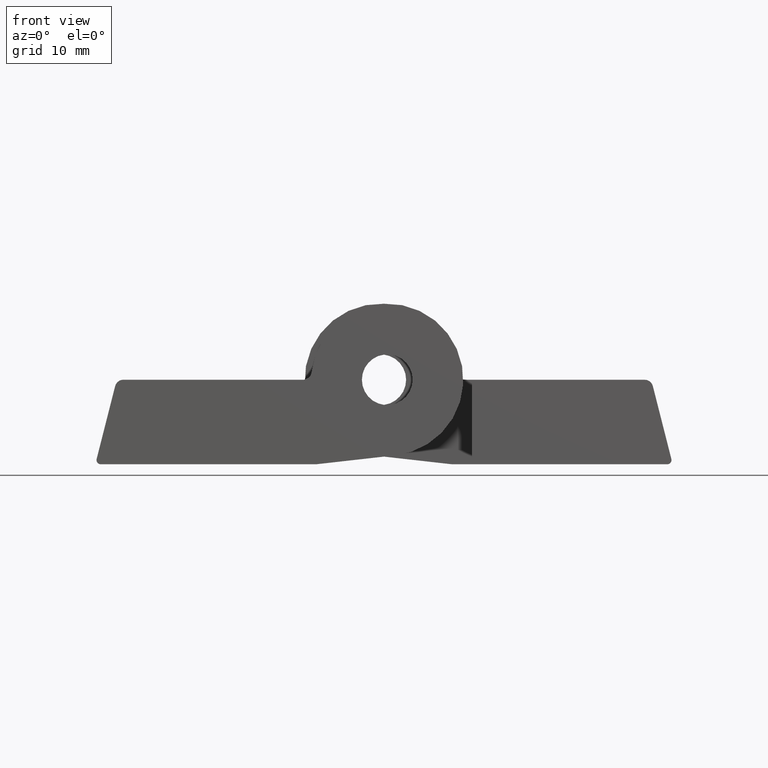
[diagram: clean part render]
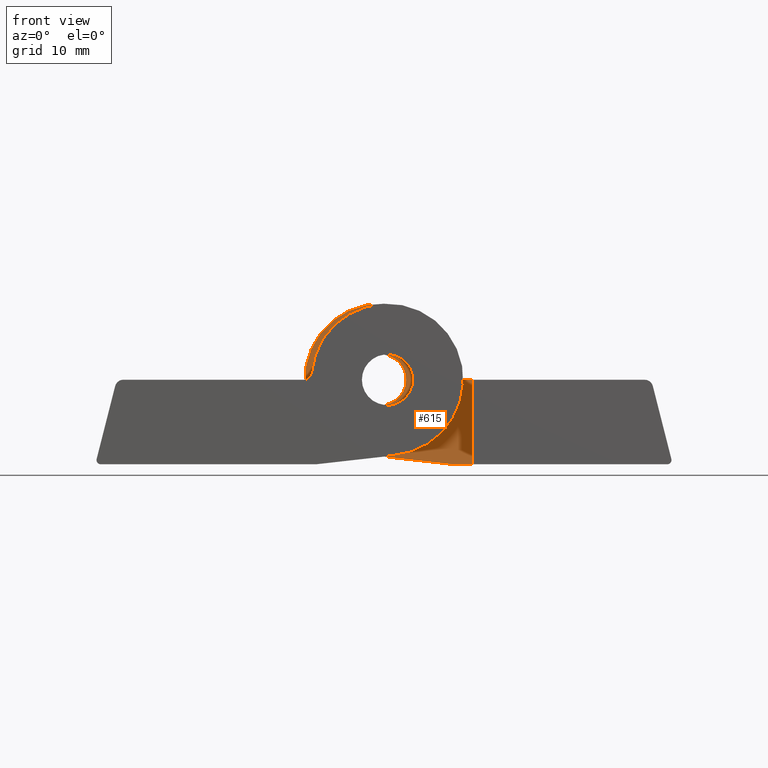
[diagram: same view with one face highlighted and labeled with its STEP entity id]
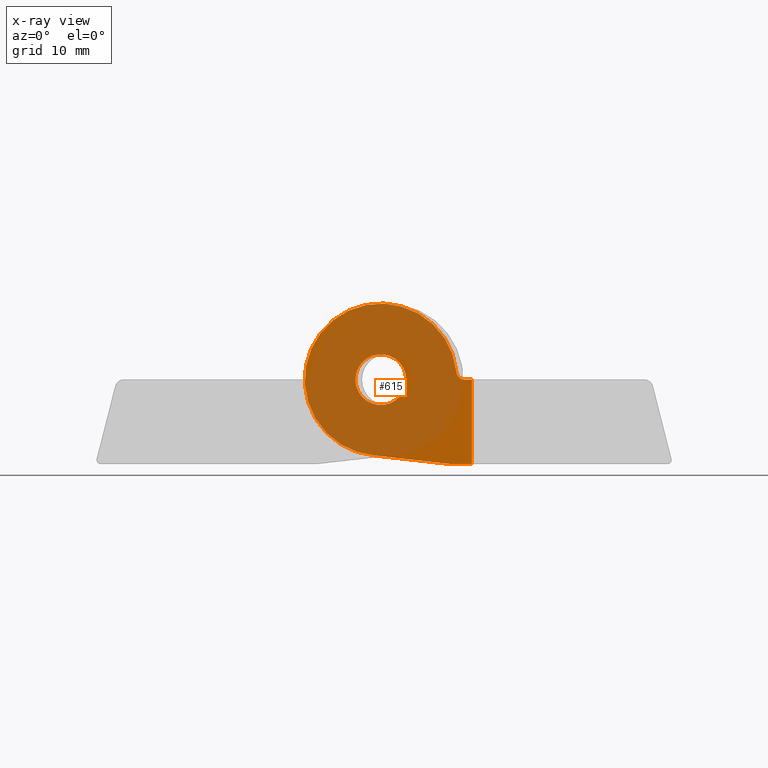
[diagram: x-ray of the same camera — body ghosted, the highlighted face saturated]
A machine part, front view. The second image highlights one B-rep face of the part: STEP entity #615.
The next image is the same camera in x-ray: the body ghosted, the highlighted face saturated — about 83% of this face is hidden behind the body in this view.
In plain terms, the highlighted planar face has unit normal (0, 1, 0).
Its self-contained STEP definition (entity closure, byte-faithful):
#153=CARTESIAN_POINT('',(30.866968273547911,2.668013927689949,9.999997779961149));
#154=VERTEX_POINT('',#153);
#161=CARTESIAN_POINT('',(31.699994929270304,2.668013927689949,9.999997779960040));
#162=VERTEX_POINT('',#161);
#163=CARTESIAN_POINT('',(30.866968273547911,2.668013927689949,9.999997779961149));
#164=DIRECTION('',(1.0,0.0,-1.330626E-012));
#165=VECTOR('',#164,0.833026655722392);
#166=LINE('',#163,#165);
#167=EDGE_CURVE('',#154,#162,#166,.T.);
#275=CARTESIAN_POINT('',(29.871981079764339,2.668013927689949,10.899997909476070));
#276=VERTEX_POINT('',#275);
#283=CARTESIAN_POINT('',(30.866968273547915,2.668013927689949,10.999997496566948));
#284=DIRECTION('',(7.703720E-034,1.0,-6.123234E-017));
#285=DIRECTION('',(-0.994987475757265,-6.123210E-018,-0.099999615430190));
#286=AXIS2_PLACEMENT_3D('',#283,#284,#285);
#287=CIRCLE('',#286,0.999999716605787);
#288=EDGE_CURVE('',#154,#276,#287,.T.);
#341=CARTESIAN_POINT('',(20.191709027022199,2.668013927689948,1.029273055670984));
#342=VERTEX_POINT('',#341);
#349=CARTESIAN_POINT('',(20.917086790741052,2.668013927689949,10.000000666356073));
#350=DIRECTION('',(7.703720E-034,-1.0,6.123234E-017));
#351=DIRECTION('',(0.994987475757264,6.123210E-018,0.099999615430204));
#352=AXIS2_PLACEMENT_3D('',#349,#350,#351);
#353=CIRCLE('',#352,9.000007042508656);
#354=EDGE_CURVE('',#276,#342,#353,.T.);
#404=CARTESIAN_POINT('',(29.317091403284451,2.668013927689948,-1.633687E-016));
#405=VERTEX_POINT('',#404);
#412=CARTESIAN_POINT('',(20.191709027022199,2.668013927689948,1.029273055670984));
#413=DIRECTION('',(0.993699004315188,0.0,-0.112081616793316));
#414=VECTOR('',#413,9.183245969488565);
#415=LINE('',#412,#414);
#416=EDGE_CURVE('',#342,#405,#415,.T.);
#435=CARTESIAN_POINT('',(31.699994929270304,2.668013927689948,-1.633687E-016));
#436=VERTEX_POINT('',#435);
#443=CARTESIAN_POINT('',(29.317091403284451,2.668013927689948,-1.633687E-016));
#444=DIRECTION('',(1.0,0.0,0.0));
#445=VECTOR('',#444,2.382903525985853);
#446=LINE('',#443,#445);
#447=EDGE_CURVE('',#405,#436,#446,.T.);
#577=CARTESIAN_POINT('',(31.699994929270304,2.668013927689947,-10.900036170845624));
#578=DIRECTION('',(0.0,1.0,0.0));
#579=DIRECTION('',(-1.0,0.0,0.0));
#580=AXIS2_PLACEMENT_3D('',#577,#578,#579);
#581=PLANE('',#580);
#582=ORIENTED_EDGE('',*,*,#447,.T.);
#583=CARTESIAN_POINT('',(31.699994929270304,2.668013927689948,0.0));
#584=DIRECTION('',(0.0,0.0,1.0));
#585=VECTOR('',#584,9.999997779960040);
#586=LINE('',#583,#585);
#587=EDGE_CURVE('',#436,#162,#586,.T.);
#588=ORIENTED_EDGE('',*,*,#587,.T.);
#589=ORIENTED_EDGE('',*,*,#167,.F.);
#590=ORIENTED_EDGE('',*,*,#288,.T.);
#591=ORIENTED_EDGE('',*,*,#354,.T.);
#592=ORIENTED_EDGE('',*,*,#416,.T.);
#593=EDGE_LOOP('',(#582,#588,#589,#590,#591,#592));
#594=FACE_OUTER_BOUND('',#593,.T.);
#595=CARTESIAN_POINT('',(23.917079267355803,2.668013927689949,10.000000666356073));
#596=VERTEX_POINT('',#595);
#597=CARTESIAN_POINT('',(17.917094314126302,2.668013927689949,10.000000666356073));
#598=VERTEX_POINT('',#597);
#599=CARTESIAN_POINT('',(20.917086790741052,2.668013927689949,10.000000666356073));
#600=DIRECTION('',(0.0,-1.0,6.123234E-017));
#601=DIRECTION('',(-1.0,0.0,0.0));
#602=AXIS2_PLACEMENT_3D('',#599,#600,#601);
#603=CIRCLE('',#602,2.999992476614749);
#604=EDGE_CURVE('',#596,#598,#603,.T.);
#605=ORIENTED_EDGE('',*,*,#604,.F.);
#606=CARTESIAN_POINT('',(20.917086790741052,2.668013927689949,10.000000666356073));
#607=DIRECTION('',(0.0,-1.0,6.123234E-017));
#608=DIRECTION('',(-1.0,0.0,0.0));
#609=AXIS2_PLACEMENT_3D('',#606,#607,#608);
#610=CIRCLE('',#609,2.999992476614749);
#611=EDGE_CURVE('',#598,#596,#610,.T.);
#612=ORIENTED_EDGE('',*,*,#611,.F.);
#613=EDGE_LOOP('',(#605,#612));
#614=FACE_BOUND('',#613,.T.);
#615=ADVANCED_FACE('',(#594,#614),#581,.F.);